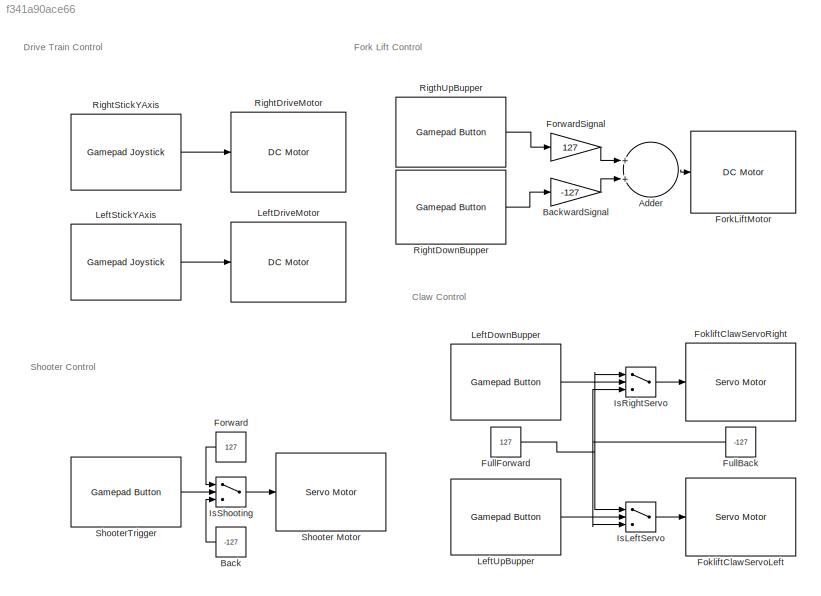
MODEL slx_f341a90ace66
KIND model
CONFIG AbsTol = auto
CONFIG EnableMultiTasking = on
CONFIG FixedStep = auto
CONFIG MaxStep = auto
CONFIG MinStep = auto
CONFIG RelTol = 1e-3
CONFIG SampleTimeConstraint = Unconstrained
CONFIG Solver = FixedStepDiscrete
CONFIG SolverName = FixedStepDiscrete
CONFIG StartTime = 0.0
CONFIG StopTime = 10.0
BLOCK [Sum] Adder
  InputSameDT = off
  OutDataTypeStr = Inherit: Inherit via internal rule
  Ports = [2, 1]
  SaturateOnIntegerOverflow = off
BLOCK [Constant] Back
  Value = -127
BLOCK [Gain] BackwardSignal
  Gain = -127
  OutDataTypeStr = Inherit: Inherit via internal rule
  ParamDataTypeStr = Inherit: Inherit via internal rule
  SaturateOnIntegerOverflow = off
BLOCK [Reference] FokliftClawServoLeft  REF=vexarmcortexlib/Actuators/Servo Motor
  Ports = [1]
  SourceBlock = vexarmcortexlib/Actuators/Servo Motor
  SourceProductBaseCode = EC_VEX_MICRO
  SourceProductName = Simulink Coder Support Package for ARM Cortex-based VEX Microcontroller
  SourceType = Servo Motor
BLOCK [Reference] FokliftClawServoRight  REF=vexarmcortexlib/Actuators/Servo Motor
  Ports = [1]
  SourceBlock = vexarmcortexlib/Actuators/Servo Motor
  SourceProductBaseCode = EC_VEX_MICRO
  SourceProductName = Simulink Coder Support Package for ARM Cortex-based VEX Microcontroller
  SourceType = Servo Motor
BLOCK [Reference] ForkLiftMotor  REF=vexarmcortexlib/Actuators/DC Motor
  Ports = [1]
  SourceBlock = vexarmcortexlib/Actuators/DC Motor
  SourceProductBaseCode = EC_VEX_MICRO
  SourceProductName = Simulink Coder Support Package for ARM Cortex-based VEX Microcontroller
  SourceType = DC Motor
BLOCK [Constant] Forward
  Value = 127
BLOCK [Gain] ForwardSignal
  Gain = 127
  OutDataTypeStr = Inherit: Inherit via internal rule
  ParamDataTypeStr = Inherit: Inherit via internal rule
  SaturateOnIntegerOverflow = off
BLOCK [Constant] FullBack
  Value = -127
BLOCK [Constant] FullForward
  Value = 127
BLOCK [Switch] IsLeftServo
  Criteria = u2 > Threshold
  InputSameDT = off
  SaturateOnIntegerOverflow = off
BLOCK [Switch] IsRightServo
  Criteria = u2 > Threshold
  InputSameDT = off
  SaturateOnIntegerOverflow = off
BLOCK [Switch] IsShooting
  Criteria = u2 > Threshold
  InputSameDT = off
  SaturateOnIntegerOverflow = off
BLOCK [Reference] LeftDownBupper  REF=vexarmcortexlib/Gamepad/Gamepad Button
  Ports = [0, 1]
  SourceBlock = vexarmcortexlib/Gamepad/Gamepad Button
  SourceProductBaseCode = EC_VEX_MICRO
  SourceProductName = Simulink Coder Support Package for ARM Cortex-based VEX Microcontroller
  SourceType = Gamepad Button
BLOCK [Reference] LeftDriveMotor  REF=vexarmcortexlib/Actuators/DC Motor
  Ports = [1]
  SourceBlock = vexarmcortexlib/Actuators/DC Motor
  SourceProductBaseCode = EC_VEX_MICRO
  SourceProductName = Simulink Coder Support Package for ARM Cortex-based VEX Microcontroller
  SourceType = DC Motor
BLOCK [Reference] LeftStickYAxis  REF=vexarmcortexlib/Gamepad/Gamepad Joystick
  Ports = [0, 1]
  SourceBlock = vexarmcortexlib/Gamepad/Gamepad Joystick
  SourceProductBaseCode = EC_VEX_MICRO
  SourceProductName = Simulink Coder Support Package for ARM Cortex-based VEX Microcontroller
  SourceType = Gamepad Joystick
BLOCK [Reference] LeftUpBupper  REF=vexarmcortexlib/Gamepad/Gamepad Button
  Ports = [0, 1]
  SourceBlock = vexarmcortexlib/Gamepad/Gamepad Button
  SourceProductBaseCode = EC_VEX_MICRO
  SourceProductName = Simulink Coder Support Package for ARM Cortex-based VEX Microcontroller
  SourceType = Gamepad Button
BLOCK [Reference] RightDownBupper  REF=vexarmcortexlib/Gamepad/Gamepad Button
  Ports = [0, 1]
  SourceBlock = vexarmcortexlib/Gamepad/Gamepad Button
  SourceProductBaseCode = EC_VEX_MICRO
  SourceProductName = Simulink Coder Support Package for ARM Cortex-based VEX Microcontroller
  SourceType = Gamepad Button
BLOCK [Reference] RightDriveMotor  REF=vexarmcortexlib/Actuators/DC Motor
  Ports = [1]
  SourceBlock = vexarmcortexlib/Actuators/DC Motor
  SourceProductBaseCode = EC_VEX_MICRO
  SourceProductName = Simulink Coder Support Package for ARM Cortex-based VEX Microcontroller
  SourceType = DC Motor
BLOCK [Reference] RightStickYAxis  REF=vexarmcortexlib/Gamepad/Gamepad Joystick
  Ports = [0, 1]
  SourceBlock = vexarmcortexlib/Gamepad/Gamepad Joystick
  SourceProductBaseCode = EC_VEX_MICRO
  SourceProductName = Simulink Coder Support Package for ARM Cortex-based VEX Microcontroller
  SourceType = Gamepad Joystick
BLOCK [Reference] RigthUpBupper  REF=vexarmcortexlib/Gamepad/Gamepad Button
  Ports = [0, 1]
  SourceBlock = vexarmcortexlib/Gamepad/Gamepad Button
  SourceProductBaseCode = EC_VEX_MICRO
  SourceProductName = Simulink Coder Support Package for ARM Cortex-based VEX Microcontroller
  SourceType = Gamepad Button
BLOCK [Reference] Shooter Motor  REF=vexarmcortexlib/Actuators/Servo Motor
  Ports = [1]
  SourceBlock = vexarmcortexlib/Actuators/Servo Motor
  SourceProductBaseCode = EC_VEX_MICRO
  SourceProductName = Simulink Coder Support Package for ARM Cortex-based VEX Microcontroller
  SourceType = Servo Motor
BLOCK [Reference] ShooterTrigger  REF=vexarmcortexlib/Gamepad/Gamepad Button
  Ports = [0, 1]
  SourceBlock = vexarmcortexlib/Gamepad/Gamepad Button
  SourceProductBaseCode = EC_VEX_MICRO
  SourceProductName = Simulink Coder Support Package for ARM Cortex-based VEX Microcontroller
  SourceType = Gamepad Button
ANNOTATION (root): Claw Control
ANNOTATION (root): Drive Train Control
ANNOTATION (root): Fork Lift Control
ANNOTATION (root): Shooter Control
LINE Adder:1 -> ForkLiftMotor:1
LINE Back:1 -> IsShooting:3
LINE BackwardSignal:1 -> Adder:2
LINE Forward:1 -> IsShooting:1
LINE ForwardSignal:1 -> Adder:1
NET FullBack:1 -> IsLeftServo:3, IsRightServo:3
NET FullForward:1 -> IsLeftServo:1, IsRightServo:1
LINE IsLeftServo:1 -> FokliftClawServoLeft:1
LINE IsRightServo:1 -> FokliftClawServoRight:1
LINE IsShooting:1 -> Shooter Motor:1
LINE LeftDownBupper:1 -> IsRightServo:2
LINE LeftStickYAxis:1 -> LeftDriveMotor:1
LINE LeftUpBupper:1 -> IsLeftServo:2
LINE RightDownBupper:1 -> BackwardSignal:1
LINE RightStickYAxis:1 -> RightDriveMotor:1
LINE RigthUpBupper:1 -> ForwardSignal:1
LINE ShooterTrigger:1 -> IsShooting:2
note: NET lines group one-source signal fan-out (src -> all destinations, sorted); 1:1 wires keep LINE
